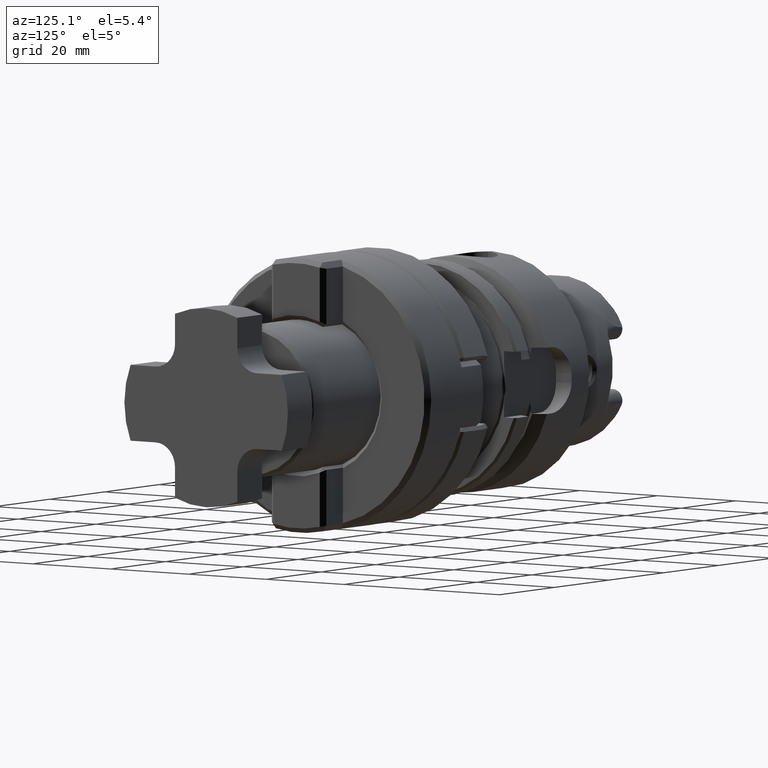
[diagram: clean part render]
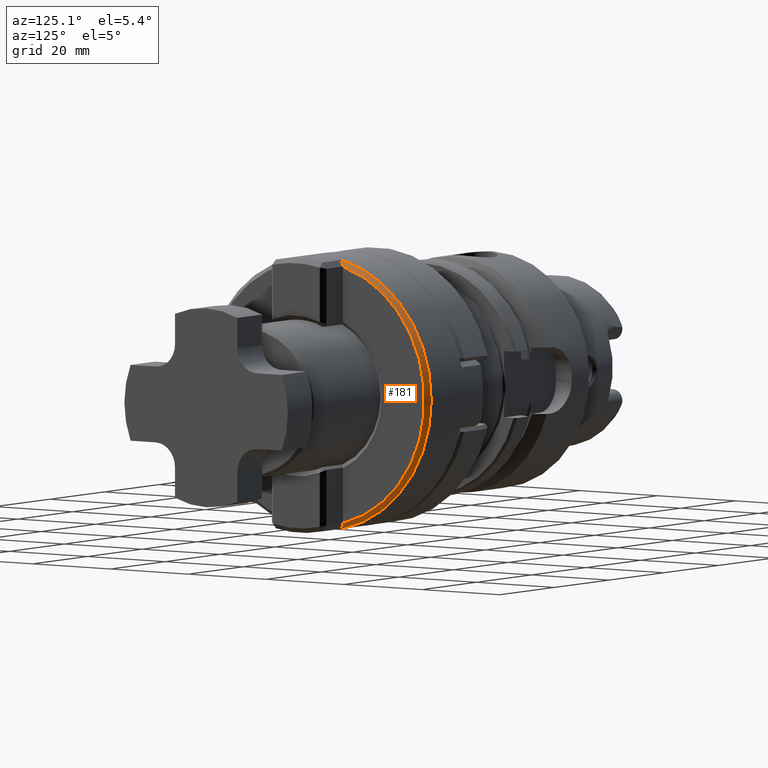
[diagram: same view with one face highlighted and labeled with its STEP entity id]
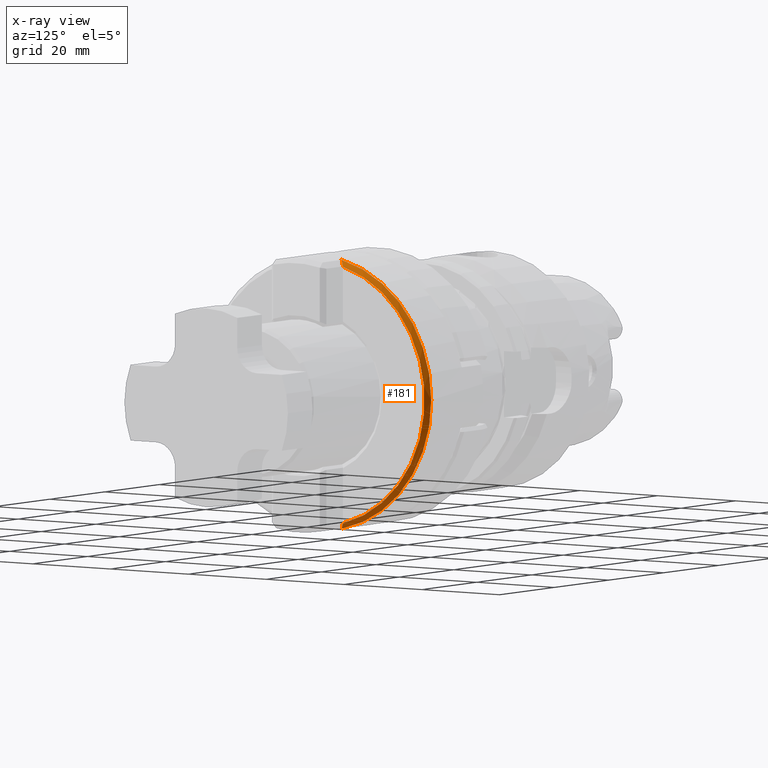
[diagram: x-ray of the same camera — body ghosted, the highlighted face saturated]
A machine part, auxiliary view. The second image highlights one B-rep face of the part: STEP entity #181.
The next image is the same camera in x-ray: the body ghosted, the highlighted face saturated — about 0% of this face is hidden behind the body in this view.
In plain terms, the highlighted conical surface has half-angle 45 deg.
Its self-contained STEP definition (entity closure, byte-faithful):
#181 = ADVANCED_FACE( '', ( #500 ), #501, .T. );
#500 = FACE_OUTER_BOUND( '', #973, .T. );
#501 = CONICAL_SURFACE( '', #974, 28.0000000000000, 0.785398163397448 );
#973 = EDGE_LOOP( '', ( #1747, #1748, #1749, #1750, #1751, #1752 ) );
#974 = AXIS2_PLACEMENT_3D( '', #1753, #1754, #1755 );
#1747 = ORIENTED_EDGE( '', *, *, #3341, .T. );
#1748 = ORIENTED_EDGE( '', *, *, #3342, .F. );
#1749 = ORIENTED_EDGE( '', *, *, #3343, .F. );
#1750 = ORIENTED_EDGE( '', *, *, #3344, .F. );
#1751 = ORIENTED_EDGE( '', *, *, #3345, .F. );
#1752 = ORIENTED_EDGE( '', *, *, #3346, .F. );
#1753 = CARTESIAN_POINT( '', ( 65.0000000000000, 0.000000000000000, 0.000000000000000 ) );
#1754 = DIRECTION( '', ( -1.00000000000000, 0.000000000000000, -0.000000000000000 ) );
#1755 = DIRECTION( '', ( 0.000000000000000, 0.000000000000000, 1.00000000000000 ) );
#3341 = EDGE_CURVE( '', #4188, #4189, #4190, .T. );
#3342 = EDGE_CURVE( '', #4191, #4189, #4192, .F. );
#3343 = EDGE_CURVE( '', #4193, #4191, #4194, .F. );
#3344 = EDGE_CURVE( '', #4195, #4193, #4196, .T. );
#3345 = EDGE_CURVE( '', #4197, #4195, #4198, .T. );
#3346 = EDGE_CURVE( '', #4188, #4197, #4199, .T. );
#4188 = VERTEX_POINT( '', #6024 );
#4189 = VERTEX_POINT( '', #6025 );
#4190 = B_SPLINE_CURVE_WITH_KNOTS( '', 3, ( #6026, #6027, #6028, #6029 ), .UNSPECIFIED., .F., .F., ( 4, 4 ), ( 0.000000000000000, 0.00188996314955622 ), .UNSPECIFIED. );
#4191 = VERTEX_POINT( '', #6030 );
#4192 = CIRCLE( '', #6031, 29.0000000000000 );
#4193 = VERTEX_POINT( '', #6032 );
#4194 = B_SPLINE_CURVE_WITH_KNOTS( '', 3, ( #6033, #6034, #6035, #6036 ), .UNSPECIFIED., .F., .F., ( 4, 4 ), ( 0.000000000000000, 0.00188996314955622 ), .UNSPECIFIED. );
#4195 = VERTEX_POINT( '', #6037 );
#4196 = B_SPLINE_CURVE_WITH_KNOTS( '', 3, ( #6038, #6039, #6040, #6041 ), .UNSPECIFIED., .F., .F., ( 4, 4 ), ( 0.000000000000000, 1.83509035065627E-005 ), .UNSPECIFIED. );
#4197 = VERTEX_POINT( '', #6042 );
#4198 = CIRCLE( '', #6043, 28.0000000000000 );
#4199 = B_SPLINE_CURVE_WITH_KNOTS( '', 3, ( #6044, #6045, #6046, #6047 ), .UNSPECIFIED., .F., .F., ( 4, 4 ), ( 0.000000000000000, 1.83509035068144E-005 ), .UNSPECIFIED. );
#6024 = CARTESIAN_POINT( '', ( 64.9872348583344, 7.00000000000000, -27.1240670048229 ) );
#6025 = CARTESIAN_POINT( '', ( 64.0000000000000, 5.98478763518878, -28.3757346506076 ) );
#6026 = CARTESIAN_POINT( '', ( 64.9872348583344, 7.00000000000000, -27.1240670048229 ) );
#6027 = CARTESIAN_POINT( '', ( 64.6652334296212, 6.65886507131518, -27.5446563986107 ) );
#6028 = CARTESIAN_POINT( '', ( 64.3358074730690, 6.32059510825780, -27.9617135415056 ) );
#6029 = CARTESIAN_POINT( '', ( 64.0000000000000, 5.98478763518879, -28.3757346506076 ) );
#6030 = CARTESIAN_POINT( '', ( 64.0000000000000, 5.98478763518878, 28.3757346506076 ) );
#6031 = AXIS2_PLACEMENT_3D( '', #7727, #7728, #7729 );
#6032 = CARTESIAN_POINT( '', ( 64.9872348583344, 7.00000000000000, 27.1240670048229 ) );
#6033 = CARTESIAN_POINT( '', ( 64.0000000000000, 5.98478763518878, 28.3757346506076 ) );
#6034 = CARTESIAN_POINT( '', ( 64.3358074730690, 6.32059510825779, 27.9617135415056 ) );
#6035 = CARTESIAN_POINT( '', ( 64.6652334296212, 6.65886507131518, 27.5446563986107 ) );
#6036 = CARTESIAN_POINT( '', ( 64.9872348583344, 7.00000000000000, 27.1240670048229 ) );
#6037 = CARTESIAN_POINT( '', ( 65.0000000000000, 7.00000000000000, 27.1108834234519 ) );
#6038 = CARTESIAN_POINT( '', ( 65.0000000000000, 7.00000000000000, 27.1108834234519 ) );
#6039 = CARTESIAN_POINT( '', ( 64.9957449861358, 7.00000000000000, 27.1152779828742 ) );
#6040 = CARTESIAN_POINT( '', ( 64.9914899388981, 7.00000000000000, 27.1196725099830 ) );
#6041 = CARTESIAN_POINT( '', ( 64.9872348583344, 7.00000000000000, 27.1240670048229 ) );
#6042 = CARTESIAN_POINT( '', ( 65.0000000000000, 7.00000000000000, -27.1108834234512 ) );
#6043 = AXIS2_PLACEMENT_3D( '', #7730, #7731, #7732 );
#6044 = CARTESIAN_POINT( '', ( 64.9872348583344, 7.00000000000000, -27.1240670048229 ) );
#6045 = CARTESIAN_POINT( '', ( 64.9914899388981, 7.00000000000000, -27.1196725099829 ) );
#6046 = CARTESIAN_POINT( '', ( 64.9957449861358, 7.00000000000000, -27.1152779828740 ) );
#6047 = CARTESIAN_POINT( '', ( 65.0000000000000, 7.00000000000000, -27.1108834234516 ) );
#7727 = CARTESIAN_POINT( '', ( 64.0000000000000, 0.000000000000000, 0.000000000000000 ) );
#7728 = DIRECTION( '', ( 1.00000000000000, 0.000000000000000, 0.000000000000000 ) );
#7729 = DIRECTION( '', ( 0.000000000000000, 0.000000000000000, -1.00000000000000 ) );
#7730 = CARTESIAN_POINT( '', ( 65.0000000000000, 0.000000000000000, 0.000000000000000 ) );
#7731 = DIRECTION( '', ( 1.00000000000000, 0.000000000000000, 0.000000000000000 ) );
#7732 = DIRECTION( '', ( 0.000000000000000, 0.000000000000000, -1.00000000000000 ) );